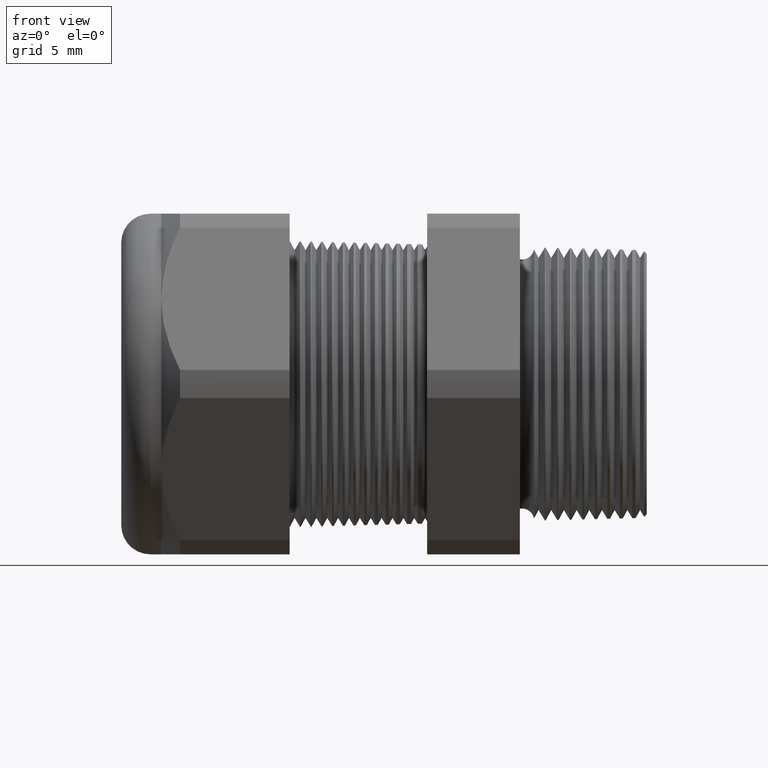
[diagram: clean part render]
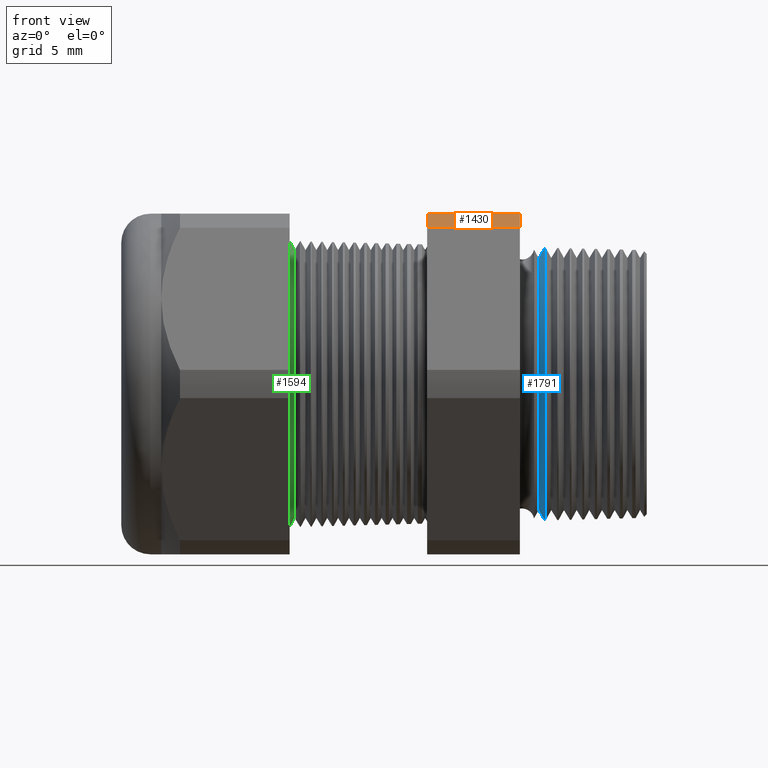
[diagram: same view with three faces highlighted in distinct colors, each labeled with its STEP entity id]
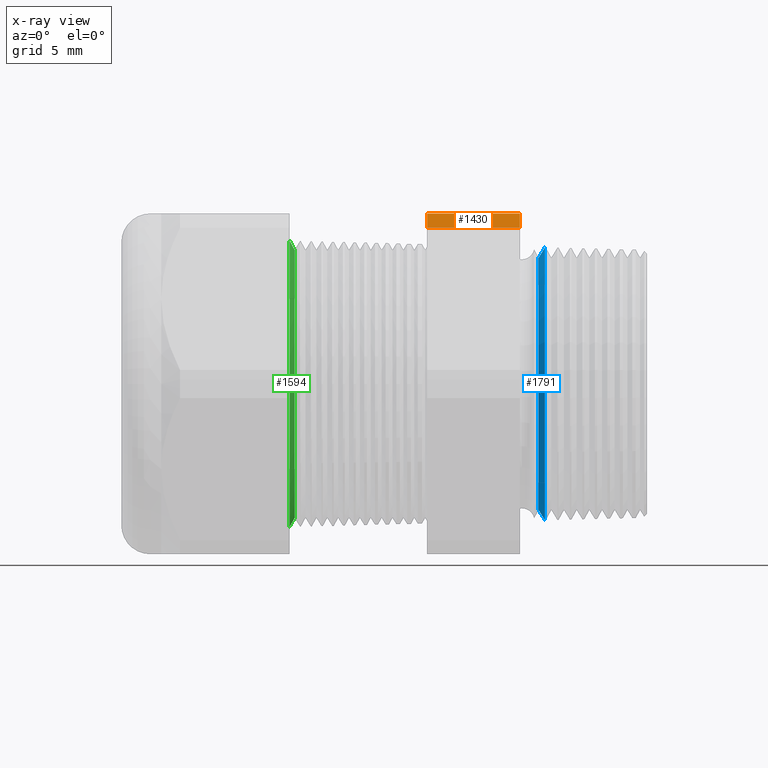
[diagram: x-ray of the same camera — body ghosted, the three highlighted faces saturated]
A machine part, front view with three faces highlighted in distinct colors.
The next image is the same camera in x-ray (body ghosted, the three faces saturated) — at least one of them is partly hidden behind the body in this view.
Their STEP definitions:

[orange] entity #1430 — the highlighted cylindrical surface (partial cylindrical patch) has radius 13.2512 mm, axis along (-1, 0, 0).
#1318 = VERTEX_POINT ( 'NONE', #4460 ) ;
#1320 = EDGE_CURVE ( 'NONE', #1318, #1321, #4459, .T. ) ;
#1321 = VERTEX_POINT ( 'NONE', #4454 ) ;
#1426 = EDGE_CURVE ( 'NONE', #1321, #1427, #4603, .T. ) ;
#1427 = VERTEX_POINT ( 'NONE', #4659 ) ;
#1430 = ADVANCED_FACE ( 'NONE', ( #4654 ), #4653, .T. ) ;
#1431 = EDGE_LOOP ( 'NONE', ( #1432, #1433, #1490, #1493 ) ) ;
#1432 = ORIENTED_EDGE ( 'NONE', *, *, #1426, .F. ) ;
#1433 = ORIENTED_EDGE ( 'NONE', *, *, #1320, .F. ) ;
#1490 = ORIENTED_EDGE ( 'NONE', *, *, #1491, .T. ) ;
#1491 = EDGE_CURVE ( 'NONE', #1318, #1492, #4730, .T. ) ;
#1492 = VERTEX_POINT ( 'NONE', #4793 ) ;
#1493 = ORIENTED_EDGE ( 'NONE', *, *, #1494, .F. ) ;
#1494 = EDGE_CURVE ( 'NONE', #1427, #1492, #4792, .T. ) ;
#4454 = CARTESIAN_POINT ( 'NONE',  ( -0.3100000000000000000, -0.2938165587564948700, 0.4310947921287048800 ) ) ;
#4455 = DIRECTION ( 'NONE',  ( 0.0000000000000000000, 0.0000000000000000000, -1.000000000000000000 ) ) ;
#4456 = DIRECTION ( 'NONE',  ( 1.000000000000000000, 0.0000000000000000000, 0.0000000000000000000 ) ) ;
#4457 = CARTESIAN_POINT ( 'NONE',  ( -0.3100000000000000000, 0.0000000000000000000, 0.0000000000000000000 ) ) ;
#4458 = AXIS2_PLACEMENT_3D ( 'NONE', #4457, #4456, #4455 ) ;
#4459 = CIRCLE ( 'NONE', #4458, 0.5217000000000000500 ) ;
#4460 = CARTESIAN_POINT ( 'NONE',  ( -0.3100000000000000000, -0.2264307620443835600, 0.4699999999999997500 ) ) ;
#4603 = LINE ( 'NONE', #4662, #4661 ) ;
#4648 = DIRECTION ( 'NONE',  ( 0.0000000000000000000, 0.0000000000000000000, 1.000000000000000000 ) ) ;
#4649 = DIRECTION ( 'NONE',  ( -1.000000000000000000, 0.0000000000000000000, 0.0000000000000000000 ) ) ;
#4650 = CARTESIAN_POINT ( 'NONE',  ( 0.04000000000000011900, 0.0000000000000000000, 0.0000000000000000000 ) ) ;
#4651 = AXIS2_PLACEMENT_3D ( 'NONE', #4650, #4649, #4648 ) ;
#4653 = CYLINDRICAL_SURFACE ( 'NONE', #4651, 0.5217000000000000500 ) ;
#4654 = FACE_OUTER_BOUND ( 'NONE', #1431, .T. ) ;
#4659 = CARTESIAN_POINT ( 'NONE',  ( -0.5659055118110235500, -0.2938165587564948700, 0.4310947921287048800 ) ) ;
#4660 = DIRECTION ( 'NONE',  ( -1.000000000000000000, 0.0000000000000000000, 0.0000000000000000000 ) ) ;
#4661 = VECTOR ( 'NONE', #4660, 39.37007874015748100 ) ;
#4662 = CARTESIAN_POINT ( 'NONE',  ( 0.04000000000000011900, -0.2938165587564948700, 0.4310947921287048800 ) ) ;
#4727 = DIRECTION ( 'NONE',  ( -1.000000000000000000, 0.0000000000000000000, 0.0000000000000000000 ) ) ;
#4728 = VECTOR ( 'NONE', #4727, 39.37007874015748100 ) ;
#4729 = CARTESIAN_POINT ( 'NONE',  ( 0.04000000000000011900, -0.2264307620443835600, 0.4699999999999997500 ) ) ;
#4730 = LINE ( 'NONE', #4729, #4728 ) ;
#4788 = DIRECTION ( 'NONE',  ( 0.0000000000000000000, 0.0000000000000000000, 1.000000000000000000 ) ) ;
#4789 = DIRECTION ( 'NONE',  ( -1.000000000000000000, 0.0000000000000000000, 0.0000000000000000000 ) ) ;
#4790 = CARTESIAN_POINT ( 'NONE',  ( -0.5659055118110235500, 0.0000000000000000000, 0.0000000000000000000 ) ) ;
#4791 = AXIS2_PLACEMENT_3D ( 'NONE', #4790, #4789, #4788 ) ;
#4792 = CIRCLE ( 'NONE', #4791, 0.5217000000000000500 ) ;
#4793 = CARTESIAN_POINT ( 'NONE',  ( -0.5659055118110235500, -0.2264307620443835600, 0.4699999999999997500 ) ) ;

[blue] entity #1791 — the highlighted conical surface has half-angle 58.5 deg.
#902 = VERTEX_POINT ( 'NONE', #3594 ) ;
#903 = VERTEX_POINT ( 'NONE', #3593 ) ;
#905 = EDGE_CURVE ( 'NONE', #903, #906, #3592, .T. ) ;
#906 = VERTEX_POINT ( 'NONE', #3588 ) ;
#909 = VERTEX_POINT ( 'NONE', #3582 ) ;
#970 = EDGE_CURVE ( 'NONE', #902, #909, #3721, .T. ) ;
#1086 = EDGE_CURVE ( 'NONE', #909, #906, #3935, .T. ) ;
#1736 = EDGE_CURVE ( 'NONE', #903, #902, #5081, .T. ) ;
#1791 = ADVANCED_FACE ( 'NONE', ( #5085 ), #5147, .T. ) ;
#1792 = EDGE_LOOP ( 'NONE', ( #1793, #1794, #1795, #1796 ) ) ;
#1793 = ORIENTED_EDGE ( 'NONE', *, *, #905, .F. ) ;
#1794 = ORIENTED_EDGE ( 'NONE', *, *, #1736, .T. ) ;
#1795 = ORIENTED_EDGE ( 'NONE', *, *, #970, .T. ) ;
#1796 = ORIENTED_EDGE ( 'NONE', *, *, #1086, .T. ) ;
#3582 = CARTESIAN_POINT ( 'NONE',  ( -0.2409236207239137100, 4.611429208159312100E-017, -0.3765517707938295700 ) ) ;
#3588 = CARTESIAN_POINT ( 'NONE',  ( -0.2409236207239137100, 0.0000000000000000000, 0.3765517707938295700 ) ) ;
#3589 = DIRECTION ( 'NONE',  ( 0.5224985647159352500, 1.044183048100722500E-016, 0.8526401643541005000 ) ) ;
#3590 = VECTOR ( 'NONE', #3589, 39.37007874015748900 ) ;
#3591 = CARTESIAN_POINT ( 'NONE',  ( -0.2584707356790751400, 4.260760302700879300E-017, 0.3479174816500060800 ) ) ;
#3592 = LINE ( 'NONE', #3591, #3590 ) ;
#3593 = CARTESIAN_POINT ( 'NONE',  ( -0.2584707356790751400, 0.0000000000000000000, 0.3479174816500060800 ) ) ;
#3594 = CARTESIAN_POINT ( 'NONE',  ( -0.2584707356790751400, 4.400326920631663700E-017, -0.3479174816500060800 ) ) ;
#3718 = DIRECTION ( 'NONE',  ( 0.5224985647159352500, 0.0000000000000000000, -0.8526401643541005000 ) ) ;
#3719 = VECTOR ( 'NONE', #3718, 39.37007874015748900 ) ;
#3720 = CARTESIAN_POINT ( 'NONE',  ( -0.2584707356790751400, 0.0000000000000000000, -0.3479174816500060800 ) ) ;
#3721 = LINE ( 'NONE', #3720, #3719 ) ;
#3931 = DIRECTION ( 'NONE',  ( 0.0000000000000000000, 0.0000000000000000000, -1.000000000000000000 ) ) ;
#3932 = DIRECTION ( 'NONE',  ( -1.000000000000000000, 0.0000000000000000000, 0.0000000000000000000 ) ) ;
#3933 = CARTESIAN_POINT ( 'NONE',  ( -0.2409236207239137100, 0.0000000000000000000, 0.0000000000000000000 ) ) ;
#3934 = AXIS2_PLACEMENT_3D ( 'NONE', #3933, #3932, #3931 ) ;
#3935 = CIRCLE ( 'NONE', #3934, 0.3765517707938296800 ) ;
#5075 = DIRECTION ( 'NONE',  ( 0.0000000000000000000, 0.0000000000000000000, -1.000000000000000000 ) ) ;
#5076 = DIRECTION ( 'NONE',  ( 1.000000000000000000, 0.0000000000000000000, 0.0000000000000000000 ) ) ;
#5077 = CARTESIAN_POINT ( 'NONE',  ( -0.2584707356790751400, 0.0000000000000000000, 0.0000000000000000000 ) ) ;
#5078 = AXIS2_PLACEMENT_3D ( 'NONE', #5077, #5076, #5075 ) ;
#5081 = CIRCLE ( 'NONE', #5078, 0.3479174816500060800 ) ;
#5085 = FACE_OUTER_BOUND ( 'NONE', #1792, .T. ) ;
#5142 = DIRECTION ( 'NONE',  ( 0.0000000000000000000, 0.0000000000000000000, -1.000000000000000000 ) ) ;
#5143 = DIRECTION ( 'NONE',  ( 1.000000000000000000, 0.0000000000000000000, 0.0000000000000000000 ) ) ;
#5144 = CARTESIAN_POINT ( 'NONE',  ( -0.2584707356790751400, 0.0000000000000000000, 0.0000000000000000000 ) ) ;
#5145 = AXIS2_PLACEMENT_3D ( 'NONE', #5144, #5143, #5142 ) ;
#5147 = CONICAL_SURFACE ( 'NONE', #5145, 0.3479174816500060800, 1.021017612416698700 ) ;

[green] entity #1594 — the highlighted conical surface has half-angle 61.5 deg.
#38 = DIRECTION ( 'NONE',  ( 0.0000000000000000000, 0.0000000000000000000, -1.000000000000000000 ) ) ;
#107 = CARTESIAN_POINT ( 'NONE',  ( -0.9454330708661420300, 0.0000000000000000000, 0.0000000000000000000 ) ) ;
#108 = DIRECTION ( 'NONE',  ( 1.000000000000000000, 0.0000000000000000000, 0.0000000000000000000 ) ) ;
#379 = VERTEX_POINT ( 'NONE', #2614 ) ;
#381 = VERTEX_POINT ( 'NONE', #2609 ) ;
#1534 = EDGE_CURVE ( 'NONE', #2719, #3161, #4291, .T. ) ;
#1594 = ADVANCED_FACE ( 'NONE', ( #4873 ), #4872, .T. ) ;
#1595 = ORIENTED_EDGE ( 'NONE', *, *, #3091, .F. ) ;
#1596 = ORIENTED_EDGE ( 'NONE', *, *, #1597, .F. ) ;
#1597 = EDGE_CURVE ( 'NONE', #379, #381, #4867, .T. ) ;
#1598 = ORIENTED_EDGE ( 'NONE', *, *, #2445, .T. ) ;
#1599 = ORIENTED_EDGE ( 'NONE', *, *, #1534, .T. ) ;
#1617 = EDGE_LOOP ( 'NONE', ( #1595, #1596, #1598, #1599 ) ) ;
#2445 = EDGE_CURVE ( 'NONE', #379, #2719, #5254, .T. ) ;
#2609 = CARTESIAN_POINT ( 'NONE',  ( -0.9316586839320379900, 4.682012911789212800E-017, -0.3696307351718083300 ) ) ;
#2614 = CARTESIAN_POINT ( 'NONE',  ( -0.9316586839320379900, 0.0000000000000000000, 0.3696307351718083300 ) ) ;
#2719 = VERTEX_POINT ( 'NONE', #5246 ) ;
#3091 = EDGE_CURVE ( 'NONE', #381, #3161, #5291, .T. ) ;
#3161 = VERTEX_POINT ( 'NONE', #5283 ) ;
#4291 = CIRCLE ( 'NONE', #4537, 0.3950000000000000200 ) ;
#4537 = AXIS2_PLACEMENT_3D ( 'NONE', #107, #108, #38 ) ;
#4864 = DIRECTION ( 'NONE',  ( 0.0000000000000000000, 0.0000000000000000000, -1.000000000000000000 ) ) ;
#4865 = DIRECTION ( 'NONE',  ( 1.000000000000000000, 0.0000000000000000000, 0.0000000000000000000 ) ) ;
#4866 = AXIS2_PLACEMENT_3D ( 'NONE', #4871, #4865, #4864 ) ;
#4867 = CIRCLE ( 'NONE', #4866, 0.3696307351718083300 ) ;
#4868 = DIRECTION ( 'NONE',  ( 0.0000000000000000000, 0.0000000000000000000, 1.000000000000000000 ) ) ;
#4869 = DIRECTION ( 'NONE',  ( -1.000000000000000000, 0.0000000000000000000, 0.0000000000000000000 ) ) ;
#4870 = AXIS2_PLACEMENT_3D ( 'NONE', #4878, #4869, #4868 ) ;
#4871 = CARTESIAN_POINT ( 'NONE',  ( -0.9316586839320379900, 0.0000000000000000000, 0.0000000000000000000 ) ) ;
#4872 = CONICAL_SURFACE ( 'NONE', #4870, 0.3950000000000000200, 1.073377489976500500 ) ;
#4873 = FACE_OUTER_BOUND ( 'NONE', #1617, .T. ) ;
#4878 = CARTESIAN_POINT ( 'NONE',  ( -0.9454330708661420300, 0.0000000000000000000, 0.0000000000000000000 ) ) ;
#5246 = CARTESIAN_POINT ( 'NONE',  ( -0.9454330708661420300, 0.0000000000000000000, 0.3950000000000000200 ) ) ;
#5247 = DIRECTION ( 'NONE',  ( -0.4771587602596191200, 0.0000000000000000000, 0.8788171126619595000 ) ) ;
#5248 = VECTOR ( 'NONE', #5247, 39.37007874015748100 ) ;
#5249 = CARTESIAN_POINT ( 'NONE',  ( -0.9454330708661420300, 0.0000000000000000000, 0.3950000000000000200 ) ) ;
#5254 = LINE ( 'NONE', #5249, #5248 ) ;
#5283 = CARTESIAN_POINT ( 'NONE',  ( -0.9454330708661420300, 4.837354856632045600E-017, -0.3950000000000000200 ) ) ;
#5284 = DIRECTION ( 'NONE',  ( -0.4771587602596191200, 1.076240564057387800E-016, -0.8788171126619595000 ) ) ;
#5285 = VECTOR ( 'NONE', #5284, 39.37007874015748100 ) ;
#5286 = CARTESIAN_POINT ( 'NONE',  ( -0.9454330708661420300, 4.837354856632045600E-017, -0.3950000000000000200 ) ) ;
#5291 = LINE ( 'NONE', #5286, #5285 ) ;